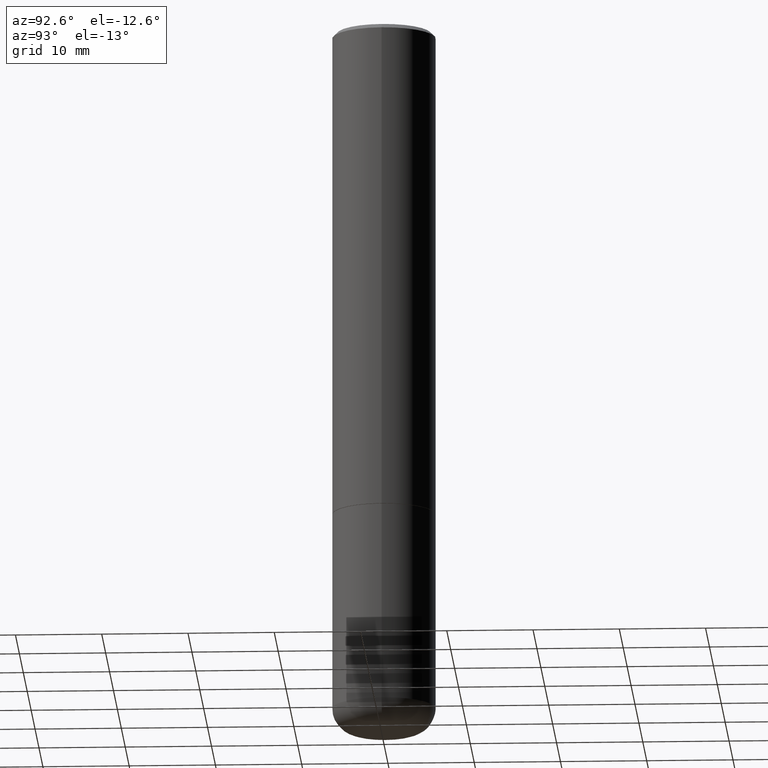
[diagram: clean part render]
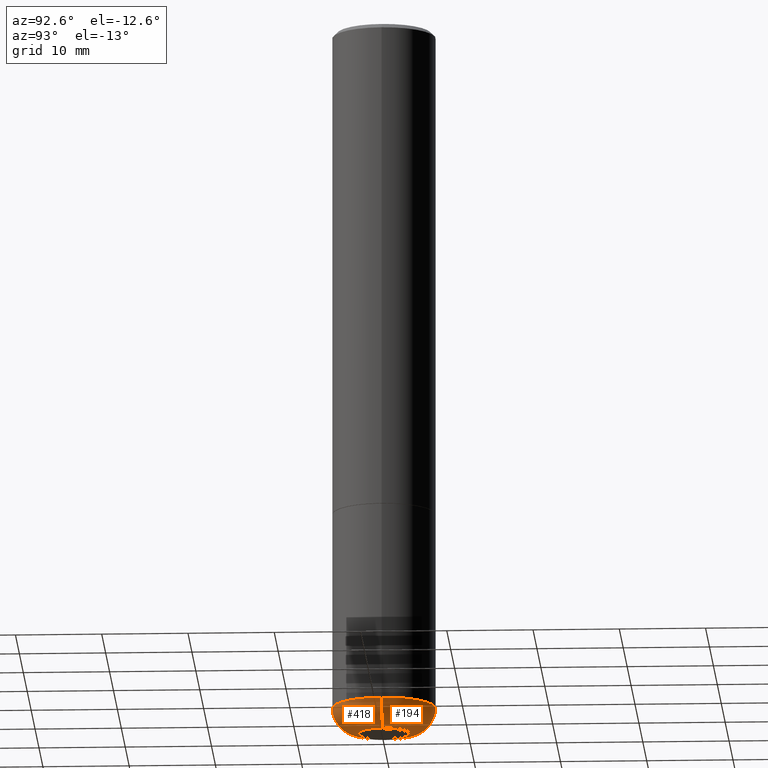
[diagram: same view with one multi-face feature highlighted, each face labeled with its STEP entity id]
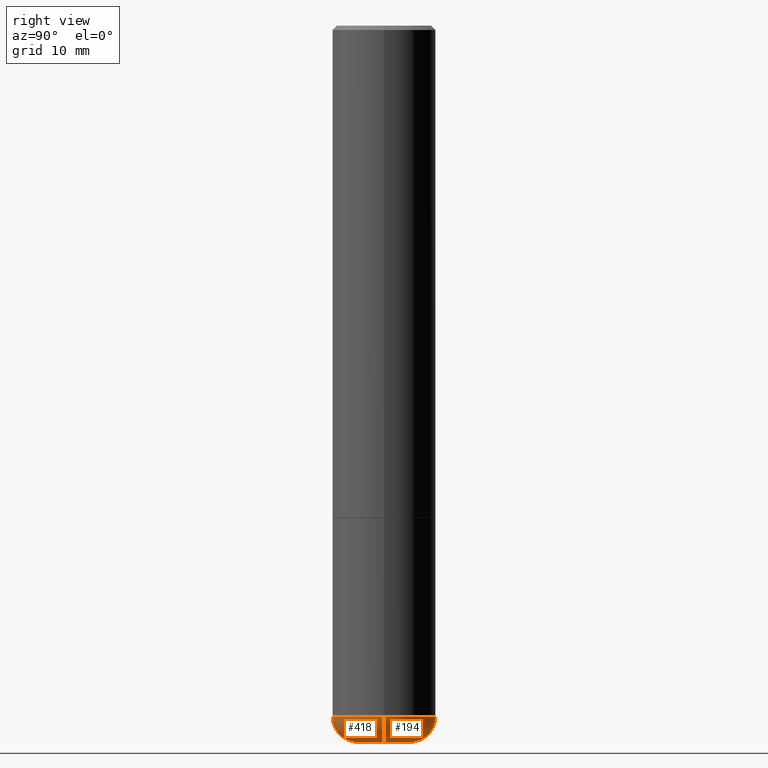
[diagram: same view with one multi-face feature highlighted, each face labeled with its STEP entity id]
A machine part, auxiliary view. The highlighted faces form ONE feature: a constant-radius fillet chain: 2 tangent blend faces with common blend radius 2.9997 mm. The faces share edges in the B-rep.
A second angle (right view) of the same feature is appended — it is thin or edge-on in the first view.
Their STEP definitions:
[1] entity #418 (Torus):
#5 = CARTESIAN_POINT ( 'NONE',  ( 0.2362000000000000210, -1.264614540928986883E-14, -3.149600000000000399 ) ) ;
#45 = DIRECTION ( 'NONE',  ( 1.000000000000000000, -6.982962677686272233E-15, 0.000000000000000000 ) ) ;
#53 = AXIS2_PLACEMENT_3D ( 'NONE', #200, #330, #198 ) ;
#68 = DIRECTION ( 'NONE',  ( -6.982962677686266711E-15, -1.000000000000000000, 3.491481338843145583E-15 ) ) ;
#75 = CARTESIAN_POINT ( 'NONE',  ( -0.2362000000000000210, -9.318467682955017493E-15, -3.149600000000000399 ) ) ;
#104 = DIRECTION ( 'NONE',  ( 7.105427357601001859E-15, 1.000000000000000000, -3.491481338843145583E-15 ) ) ;
#112 = CIRCLE ( 'NONE', #221, 0.2362000000000000210 ) ;
#121 = VERTEX_POINT ( 'NONE', #183 ) ;
#127 = EDGE_CURVE ( 'NONE', #204, #131, #216, .T. ) ;
#131 = VERTEX_POINT ( 'NONE', #75 ) ;
#144 = AXIS2_PLACEMENT_3D ( 'NONE', #390, #68, #294 ) ;
#145 = CARTESIAN_POINT ( 'NONE',  ( -0.1180999999999999966, -1.015761865388769332E-14, -3.149600000000000399 ) ) ;
#157 = CIRCLE ( 'NONE', #144, 0.1181000000000000383 ) ;
#183 = CARTESIAN_POINT ( 'NONE',  ( 0.1181000000000000105, -1.223380146317249628E-14, -3.267700000000000049 ) ) ;
#198 = DIRECTION ( 'NONE',  ( 1.000000000000000000, -6.982962677686263555E-15, 4.883557194083111780E-29 ) ) ;
#200 = CARTESIAN_POINT ( 'NONE',  ( 7.702248551960706711E-29, -1.099676962482037231E-14, -3.149600000000000399 ) ) ;
#204 = VERTEX_POINT ( 'NONE', #220 ) ;
#216 = CIRCLE ( 'NONE', #302, 0.1181000000000000383 ) ;
#218 = DIRECTION ( 'NONE',  ( -2.445468806185136597E-29, 3.491481338843145583E-15, 1.000000000000000000 ) ) ;
#220 = CARTESIAN_POINT ( 'NONE',  ( -0.1181000000000000383, -9.944215141480041685E-15, -3.267700000000000049 ) ) ;
#221 = AXIS2_PLACEMENT_3D ( 'NONE', #222, #218, #410 ) ;
#222 = CARTESIAN_POINT ( 'NONE',  ( 7.702248551960706711E-29, -1.099676962482037231E-14, -3.149600000000000399 ) ) ;
#233 = ORIENTED_EDGE ( 'NONE', *, *, #399, .T. ) ;
#236 = DIRECTION ( 'NONE',  ( -1.000000000000000000, 7.105427357601001859E-15, 0.000000000000000000 ) ) ;
#273 = AXIS2_PLACEMENT_3D ( 'NONE', #354, #356, #45 ) ;
#287 = CIRCLE ( 'NONE', #273, 0.1181000000000000105 ) ;
#290 = ORIENTED_EDGE ( 'NONE', *, *, #386, .T. ) ;
#294 = DIRECTION ( 'NONE',  ( 1.000000000000000000, -6.982962677686270655E-15, 0.000000000000000000 ) ) ;
#299 = ORIENTED_EDGE ( 'NONE', *, *, #127, .F. ) ;
#300 = ORIENTED_EDGE ( 'NONE', *, *, #309, .F. ) ;
#302 = AXIS2_PLACEMENT_3D ( 'NONE', #145, #104, #236 ) ;
#309 = EDGE_CURVE ( 'NONE', #131, #388, #112, .T. ) ;
#330 = DIRECTION ( 'NONE',  ( -2.445468806185136597E-29, 3.491481338843145583E-15, 1.000000000000000000 ) ) ;
#334 = TOROIDAL_SURFACE ( 'NONE', #53, 0.1180999999999999966, 0.1181000000000000383 ) ;
#354 = CARTESIAN_POINT ( 'NONE',  ( 7.991058417971171713E-29, -1.140911357093774644E-14, -3.267700000000000049 ) ) ;
#356 = DIRECTION ( 'NONE',  ( -2.445468806185136597E-29, 3.491481338843145583E-15, 1.000000000000000000 ) ) ;
#386 = EDGE_CURVE ( 'NONE', #204, #121, #287, .T. ) ;
#387 = FACE_OUTER_BOUND ( 'NONE', #413, .T. ) ;
#388 = VERTEX_POINT ( 'NONE', #5 ) ;
#390 = CARTESIAN_POINT ( 'NONE',  ( 0.1180999999999999966, -1.182145751705512057E-14, -3.149600000000000399 ) ) ;
#399 = EDGE_CURVE ( 'NONE', #121, #388, #157, .T. ) ;
#410 = DIRECTION ( 'NONE',  ( 1.000000000000000000, -6.982962677686264344E-15, 0.000000000000000000 ) ) ;
#413 = EDGE_LOOP ( 'NONE', ( #299, #290, #233, #300 ) ) ;
#418 = ADVANCED_FACE ( 'NONE', ( #387 ), #334, .T. ) ;
[2] entity #194 (Torus):
#5 = CARTESIAN_POINT ( 'NONE',  ( 0.2362000000000000210, -1.264614540928986883E-14, -3.149600000000000399 ) ) ;
#63 = CARTESIAN_POINT ( 'NONE',  ( 7.702248551960706711E-29, -1.099676962482037231E-14, -3.149600000000000399 ) ) ;
#68 = DIRECTION ( 'NONE',  ( -6.982962677686266711E-15, -1.000000000000000000, 3.491481338843145583E-15 ) ) ;
#75 = CARTESIAN_POINT ( 'NONE',  ( -0.2362000000000000210, -9.318467682955017493E-15, -3.149600000000000399 ) ) ;
#84 = TOROIDAL_SURFACE ( 'NONE', #298, 0.1180999999999999966, 0.1181000000000000383 ) ;
#97 = ORIENTED_EDGE ( 'NONE', *, *, #127, .T. ) ;
#101 = EDGE_CURVE ( 'NONE', #388, #131, #234, .T. ) ;
#104 = DIRECTION ( 'NONE',  ( 7.105427357601001859E-15, 1.000000000000000000, -3.491481338843145583E-15 ) ) ;
#107 = CARTESIAN_POINT ( 'NONE',  ( 7.702248551960706711E-29, -1.099676962482037231E-14, -3.149600000000000399 ) ) ;
#121 = VERTEX_POINT ( 'NONE', #183 ) ;
#127 = EDGE_CURVE ( 'NONE', #204, #131, #216, .T. ) ;
#130 = EDGE_CURVE ( 'NONE', #121, #204, #152, .T. ) ;
#131 = VERTEX_POINT ( 'NONE', #75 ) ;
#144 = AXIS2_PLACEMENT_3D ( 'NONE', #390, #68, #294 ) ;
#145 = CARTESIAN_POINT ( 'NONE',  ( -0.1180999999999999966, -1.015761865388769332E-14, -3.149600000000000399 ) ) ;
#152 = CIRCLE ( 'NONE', #348, 0.1181000000000000105 ) ;
#157 = CIRCLE ( 'NONE', #144, 0.1181000000000000383 ) ;
#170 = ORIENTED_EDGE ( 'NONE', *, *, #130, .T. ) ;
#183 = CARTESIAN_POINT ( 'NONE',  ( 0.1181000000000000105, -1.223380146317249628E-14, -3.267700000000000049 ) ) ;
#194 = ADVANCED_FACE ( 'NONE', ( #313 ), #84, .T. ) ;
#199 = EDGE_LOOP ( 'NONE', ( #170, #97, #261, #247 ) ) ;
#204 = VERTEX_POINT ( 'NONE', #220 ) ;
#216 = CIRCLE ( 'NONE', #302, 0.1181000000000000383 ) ;
#220 = CARTESIAN_POINT ( 'NONE',  ( -0.1181000000000000383, -9.944215141480041685E-15, -3.267700000000000049 ) ) ;
#234 = CIRCLE ( 'NONE', #342, 0.2362000000000000210 ) ;
#236 = DIRECTION ( 'NONE',  ( -1.000000000000000000, 7.105427357601001859E-15, 0.000000000000000000 ) ) ;
#240 = DIRECTION ( 'NONE',  ( 1.000000000000000000, -6.982962677686264344E-15, 0.000000000000000000 ) ) ;
#242 = CARTESIAN_POINT ( 'NONE',  ( 7.991058417971171713E-29, -1.140911357093774644E-14, -3.267700000000000049 ) ) ;
#247 = ORIENTED_EDGE ( 'NONE', *, *, #399, .F. ) ;
#253 = DIRECTION ( 'NONE',  ( 1.000000000000000000, -6.982962677686263555E-15, 4.883557194083111780E-29 ) ) ;
#257 = DIRECTION ( 'NONE',  ( -2.445468806185136597E-29, 3.491481338843145583E-15, 1.000000000000000000 ) ) ;
#261 = ORIENTED_EDGE ( 'NONE', *, *, #101, .F. ) ;
#294 = DIRECTION ( 'NONE',  ( 1.000000000000000000, -6.982962677686270655E-15, 0.000000000000000000 ) ) ;
#298 = AXIS2_PLACEMENT_3D ( 'NONE', #63, #257, #253 ) ;
#302 = AXIS2_PLACEMENT_3D ( 'NONE', #145, #104, #236 ) ;
#305 = DIRECTION ( 'NONE',  ( -2.445468806185136597E-29, 3.491481338843145583E-15, 1.000000000000000000 ) ) ;
#306 = DIRECTION ( 'NONE',  ( -2.445468806185136597E-29, 3.491481338843145583E-15, 1.000000000000000000 ) ) ;
#313 = FACE_OUTER_BOUND ( 'NONE', #199, .T. ) ;
#342 = AXIS2_PLACEMENT_3D ( 'NONE', #107, #305, #240 ) ;
#348 = AXIS2_PLACEMENT_3D ( 'NONE', #242, #306, #401 ) ;
#388 = VERTEX_POINT ( 'NONE', #5 ) ;
#390 = CARTESIAN_POINT ( 'NONE',  ( 0.1180999999999999966, -1.182145751705512057E-14, -3.149600000000000399 ) ) ;
#399 = EDGE_CURVE ( 'NONE', #121, #388, #157, .T. ) ;
#401 = DIRECTION ( 'NONE',  ( 1.000000000000000000, -6.982962677686272233E-15, 0.000000000000000000 ) ) ;